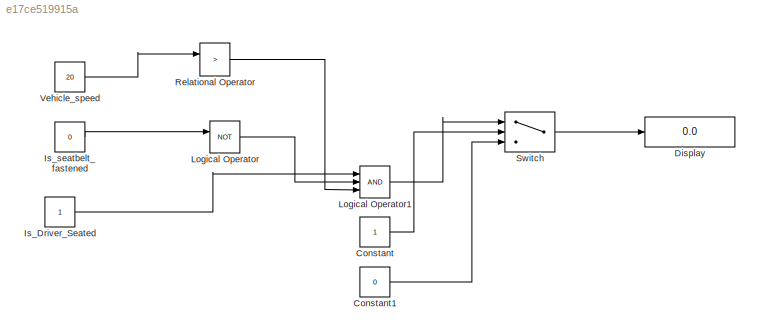
MODEL slx_e17ce519915a
KIND model
CONFIG AbsTol = auto
CONFIG EnableMultiTasking = off
CONFIG FixedStep = auto
CONFIG MaxStep = auto
CONFIG MinStep = auto
CONFIG RelTol = 1e-3
CONFIG SampleTimeConstraint = Unconstrained
CONFIG SolverName = VariableStepAuto
CONFIG StartTime = 0.0
CONFIG StopTime = 20
BLOCK [Constant] Constant
BLOCK [Constant] Constant1
  Value = 0
BLOCK [Display] Display
  Decimation = 1
BLOCK [Constant] Is_Driver_Seated
BLOCK [Constant] Is_seatbelt_fastened
  Value = 0
BLOCK [Logic] Logical Operator
  AllPortsSameDT = off
  Operator = NOT
  OutDataTypeStr = boolean
BLOCK [Logic] Logical Operator1
  AllPortsSameDT = off
  Inputs = 3
  OutDataTypeStr = boolean
BLOCK [RelationalOperator] Relational Operator
  InputSameDT = off
  Operator = >
  OutDataTypeStr = boolean
  RndMeth = Simplest
BLOCK [Switch] Switch
  Criteria = u2 > Threshold
  InputSameDT = off
  SaturateOnIntegerOverflow = off
BLOCK [Constant] Vehicle_speed
  Value = 20
LINE Constant1:1 -> Switch:3
LINE Constant:1 -> Switch:2
LINE Is_Driver_Seated:1 -> Logical Operator1:1
LINE Is_seatbelt_fastened:1 -> Logical Operator:1
LINE Logical Operator1:1 -> Switch:1
LINE Logical Operator:1 -> Logical Operator1:2
LINE Relational Operator:1 -> Logical Operator1:3
LINE Switch:1 -> Display:1
LINE Vehicle_speed:1 -> Relational Operator:1
